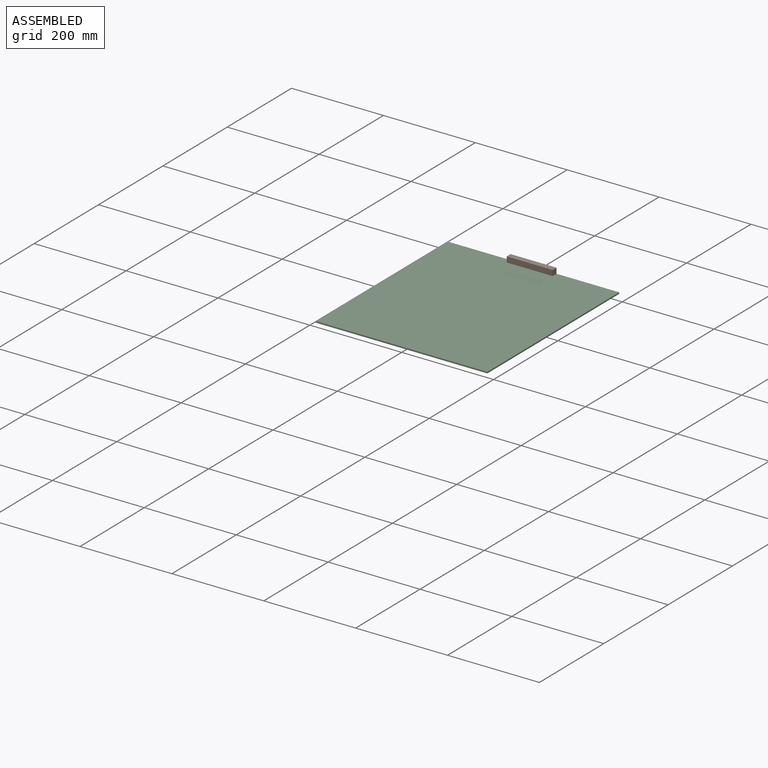
[diagram: assembled view]
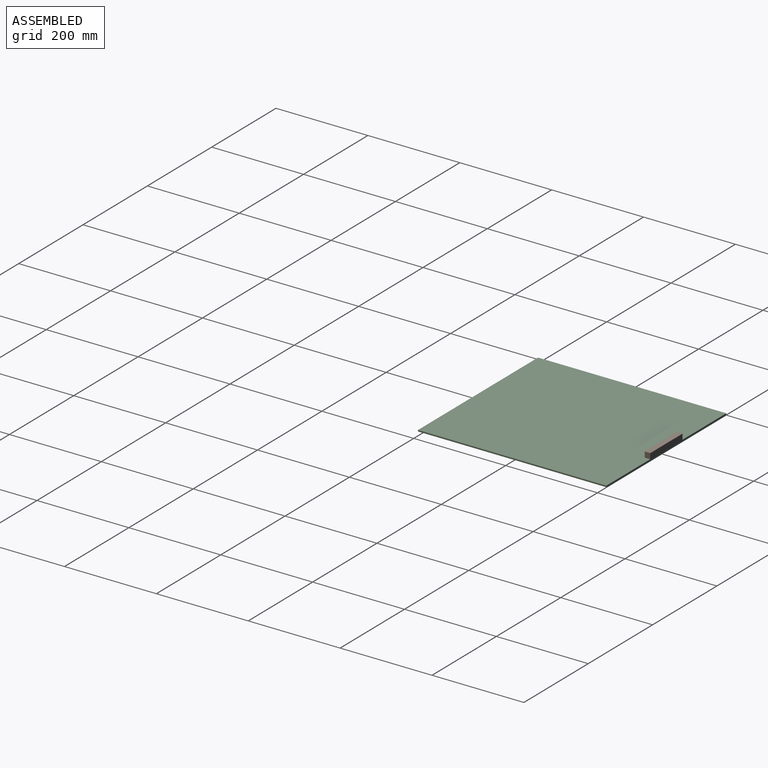
[diagram: assembled view, second angle]
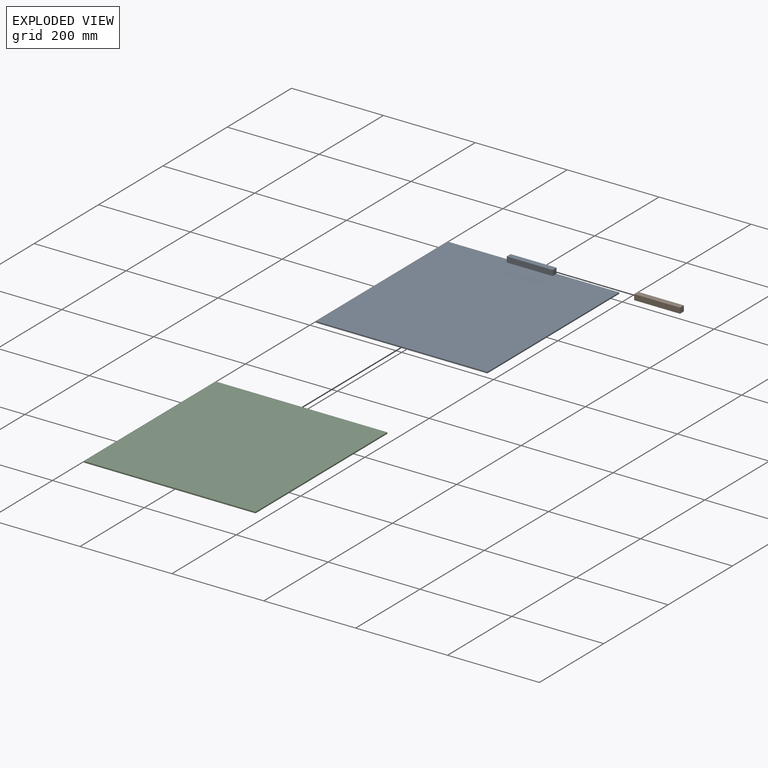
[diagram: exploded view]
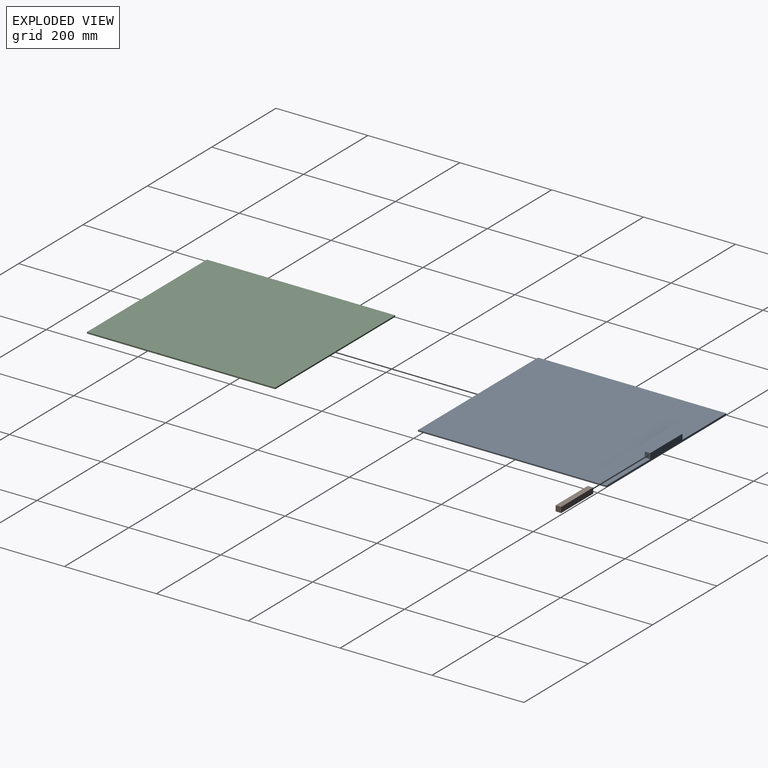
[diagram: exploded view, second angle]
FCSTD DOCUMENT  (FreeCAD 0.19R)
Label: testna_plosca
License: All rights reserved
LicenseURL: http://en.wikipedia.org/wiki/All_rights_reserved
objects: TechDraw::DrawViewDimension×6, PartDesign::CoordinateSystem×5, TechDraw::DrawProjGroupItem×4, App::DocumentObjectGroup×3, App::Part×3, Sketcher::SketchObject×2, PartDesign::Pad×2, PartDesign::Body×2, App::Link×2, TechDraw::DrawProjGroup×2, App::FeaturePython×1, TechDraw::DrawSVGTemplate×1, TechDraw::DrawViewPart×1, TechDraw::DrawRichAnno×1, TechDraw::DrawPage×1
note: 13 computed .brp shape members not serialized (recipe doc carries the construction recipe); baked Part::Feature solids carry a one-line shape summary decoded from their .brp

FEATURE [PartDesign::CoordinateSystem] LCS_Origin
  AttacherType = Attacher::AttachEngine3D
  MapMode = 2
  Support = -> [X_Axis]
FEATURE [App::FeaturePython] Variables  # WARN: FeaturePython — macro-defined, semantics opaque (R4)
  Type = App::PropertyContainer
  depth = 410
  width = 373
FEATURE [App::DocumentObjectGroup] Constraints
FEATURE [App::DocumentObjectGroup] Configurations
FEATURE [PartDesign::CoordinateSystem] LCS_0
  AttacherType = Attacher::AttachEngine3D
  MapMode = 2
  Support = -> [X_Axis001]
FEATURE [PartDesign::CoordinateSystem] LCS_0001
  AttacherType = Attacher::AttachEngine3D
  MapMode = 2
  Support = -> [X_Axis002]
FEATURE [Sketcher::SketchObject] Sketch
  FullyConstrained = true
  MapMode = 5
  Support = -> [XY_Plane002]
  expr: Constraints[9] = Variables.width
  expr: Constraints[10] = Variables.depth
  sketch-geometry (4):
    g0: LineSegment StartX=-186.5 StartY=0 StartZ=0 EndX=186.5 EndY=0 EndZ=0
    g1: LineSegment StartX=186.5 StartY=0 StartZ=0 EndX=186.5 EndY=410 EndZ=0
    g2: LineSegment StartX=186.5 StartY=410 StartZ=0 EndX=-186.5 EndY=410 EndZ=0
    g3: LineSegment StartX=-186.5 StartY=410 StartZ=0 EndX=-186.5 EndY=0 EndZ=0
  constraints (11):
    c: Coincident(g0,g1)
    c: Coincident(g1,g2)
    c: Coincident(g2,g3)
    c: Coincident(g3,g0)
    c: Horizontal(g0)
    c: Horizontal(g2)
    c: Vertical(g1)
    c: Vertical(g3)
    c: Symmetric(g0,g0,g-1)
    c: DistanceX(g0,g0) = 373
    c: DistanceY(g1,g1) = 410
FEATURE [PartDesign::Pad] Pad
  Direction = (1,1,1)
  Length = 3
  Length2 = 100
  Profile = -> Sketch
  Type = 0
FEATURE [PartDesign::Body] Body
  Group = -> [LCS_0001,Sketch,Pad]
  Origin = -> Origin002
  Tip = -> Pad
FEATURE [App::Part] plate
  Group = -> [LCS_0,Body]
  Origin = -> Origin001
FEATURE [PartDesign::CoordinateSystem] LCS_0002
  AttacherType = Attacher::AttachEngine3D
  MapMode = 2
  Support = -> [X_Axis003]
FEATURE [PartDesign::CoordinateSystem] LCS_0003
  AttacherType = Attacher::AttachEngine3D
  MapMode = 2
  Support = -> [X_Axis004]
FEATURE [Sketcher::SketchObject] Sketch001
  FullyConstrained = true
  MapMode = 5
  Placement = pos=(0,0,0) rot=(0.57735,0.57735,0.57735;2.0944rad)
  Support = -> [YZ_Plane004]
  expr: Constraints[8] = Variables.depth
  sketch-geometry (4):
    g0: LineSegment StartX=398 StartY=15 StartZ=0 EndX=410 EndY=15 EndZ=0
    g1: LineSegment StartX=410 StartY=15 StartZ=0 EndX=410 EndY=3 EndZ=0
    g2: LineSegment StartX=410 StartY=3 StartZ=0 EndX=398 EndY=3 EndZ=0
    g3: LineSegment StartX=398 StartY=3 StartZ=0 EndX=398 EndY=15 EndZ=0
  constraints (12):
    c: Coincident(g0,g1)
    c: Coincident(g1,g2)
    c: Coincident(g2,g3)
    c: Coincident(g3,g0)
    c: Horizontal(g0)
    c: Horizontal(g2)
    c: Vertical(g1)
    c: Vertical(g3)
    c: DistanceX(g-1,g1) = 410
    c: DistanceY(g-1,g1) = 3
    c: DistanceY(g1,g1) = 12
    c: DistanceX(g0,g0) = 12
FEATURE [PartDesign::Pad] Pad001
  Direction = (1,1,1)
  Length = 100
  Length2 = 100
  Midplane = true
  Placement = pos=(0,0,0) rot=(0.57735,0.57735,0.57735;2.0944rad)
  Profile = -> Sketch001
  Type = 0
FEATURE [PartDesign::Body] Body_2
  Group = -> [LCS_0003,Sketch001,Pad001]
  Origin = -> Origin004
  Tip = -> Pad001
FEATURE [App::Part] handle
  Group = -> [LCS_0002,Body_2]
  Origin = -> Origin003
FEATURE [App::DocumentObjectGroup] Parts
  Group = -> [plate,handle]
FEATURE [App::Link] plate001
  AssemblyType = Part::Link
  AttachedBy = #LCS_0
  AttachedTo = Parent Assembly#LCS_Origin
  LinkedObject = -> plate
  SolverId = Asm4EE
  expr: Placement = LCS_Origin.Placement * AttachmentOffset * LCS_0.Placement ^ -1
FEATURE [App::Link] handle001
  AssemblyType = Part::Link
  AttachedBy = #LCS_0002
  AttachedTo = Parent Assembly#LCS_Origin
  LinkedObject = -> handle
  SolverId = Asm4EE
  expr: Placement = LCS_Origin.Placement * AttachmentOffset * LCS_0002.Placement ^ -1
FEATURE [App::Part] Assembly
  AssemblyType = Part::Link
  Group = -> [LCS_Origin,Variables,Constraints,Configurations,plate001,handle001]
  Origin = -> Origin
  Type = Assembly
FEATURE [TechDraw::DrawSVGTemplate] Template
  EditableTexts = AVTOR=Brane Borštnik; AVTOR_2=Risal: Janez Paternoster; DATUM=6.5.2022; MERILO=1:5; NAZIV=Testna plošča; NAZIV_2=Dadant-Blatt panj; STRAN=Stran 1/1; VIR=https://github.com/<owner>/Dadant-Blatt
  Height = 297
  Orientation = 0
  Width = 210
FEATURE [TechDraw::DrawViewPart] View
  CoarseView = false
  Direction = (0.577,-0.577,0.577)
  Focus = 100
  HardHidden = false
  IsoCount = 0
  IsoHidden = false
  IsoVisible = false
  LockPosition = false
  Perspective = false
  Rotation = 0
  Scale = 0.2
  ScaleType = 0
  SeamHidden = false
  SeamVisible = true
  SmoothHidden = false
  SmoothVisible = true
  Source = -> [Assembly]
  X = 89.9831
  XDirection = (0.707,0.707,0)
  Y = 240.27
FEATURE [TechDraw::DrawProjGroupItem] ProjItem  label="Front"
  CoarseView = false
  Direction = (0,0,1)
  Focus = 100
  HardHidden = false
  IsoCount = 0
  IsoHidden = false
  IsoVisible = false
  LockPosition = true
  Perspective = false
  Rotation = 0
  RotationVector = (0,1,0)
  Scale = 0.2
  ScaleType = 2
  SeamHidden = false
  SeamVisible = true
  SmoothHidden = false
  SmoothVisible = true
  Source = -> [plate]
  Type = 0
  X = 0
  XDirection = (0,1,0)
  Y = 0
FEATURE [TechDraw::DrawProjGroupItem] ProjItem001  label="Left"
  CoarseView = false
  Direction = (0,-1,1e-16)
  Focus = 100
  HardHidden = false
  IsoCount = 0
  IsoHidden = false
  IsoVisible = false
  LockPosition = false
  Perspective = false
  Rotation = 0
  RotationVector = (1,0,0)
  Scale = 0.2
  ScaleType = 2
  SeamHidden = false
  SeamVisible = true
  SmoothHidden = false
  SmoothVisible = true
  Source = -> [plate]
  Type = 1
  X = 56.3
  XDirection = (0,1e-16,1)
  Y = 0
FEATURE [TechDraw::DrawProjGroup] ProjGroup
  Anchor = -> ProjItem
  AutoDistribute = true
  LockPosition = false
  ProjectionType = 0
  Rotation = 0
  Scale = 0.2
  ScaleType = 0
  Source = -> [plate]
  Views = -> [ProjItem,ProjItem001]
  X = 87.0632
  Y = 149.751
  spacingX = 15
  spacingY = 15
FEATURE [TechDraw::DrawProjGroupItem] ProjItem002  label="Front001"
  CoarseView = false
  Direction = (0,-1,0)
  Focus = 100
  HardHidden = false
  IsoCount = 0
  IsoHidden = false
  IsoVisible = false
  LockPosition = true
  Perspective = false
  Rotation = 0
  RotationVector = (1,0,0)
  Scale = 0.2
  ScaleType = 2
  SeamHidden = false
  SeamVisible = true
  SmoothHidden = false
  SmoothVisible = true
  Source = -> [handle]
  Type = 0
  X = 0
  XDirection = (1,0,0)
  Y = 0
FEATURE [TechDraw::DrawProjGroupItem] ProjItem003  label="Left001"
  CoarseView = false
  Direction = (-1,-1e-16,0)
  Focus = 100
  HardHidden = false
  IsoCount = 0
  IsoHidden = false
  IsoVisible = false
  LockPosition = false
  Perspective = false
  Rotation = 0
  RotationVector = (1,0,0)
  Scale = 0.2
  ScaleType = 2
  SeamHidden = false
  SeamVisible = true
  SmoothHidden = false
  SmoothVisible = true
  Source = -> [handle]
  Type = 1
  X = 26.2
  XDirection = (1e-16,-1,0)
  Y = 0
FEATURE [TechDraw::DrawProjGroup] ProjGroup001
  Anchor = -> ProjItem002
  AutoDistribute = true
  LockPosition = false
  ProjectionType = 0
  Rotation = 0
  Scale = 0.2
  ScaleType = 0
  Source = -> [handle]
  Views = -> [ProjItem002,ProjItem003]
  X = 65.7893
  Y = 75.0843
  spacingX = 15
  spacingY = 15
FEATURE [TechDraw::DrawViewDimension] Dimension
  Arbitrary = false
  ArbitraryTolerances = false
  EqualTolerance = true
  FormatSpec = %.6g
  FormatSpecOverTolerance = %+.6g
  FormatSpecUnderTolerance = %+.6g
  Inverted = false
  LockPosition = false
  MeasureType = 1
  OverTolerance = 0
  References2D = -> [ProjItem]
  Rotation = 0
  Scale = 0.2
  ScaleType = 0
  TheoreticalExact = false
  Type = 1
  UnderTolerance = 0
  X = -2.89677
  Y = 40.0941
FEATURE [TechDraw::DrawViewDimension] Dimension001
  Arbitrary = false
  ArbitraryTolerances = false
  EqualTolerance = true
  FormatSpec = %.6g
  FormatSpecOverTolerance = %+.6g
  FormatSpecUnderTolerance = %+.6g
  Inverted = false
  LockPosition = false
  MeasureType = 1
  OverTolerance = 0
  References2D = -> [ProjItem]
  Rotation = 0
  Scale = 0.2
  ScaleType = 0
  TheoreticalExact = false
  Type = 2
  UnderTolerance = 0
  X = -55.2425
  Y = 0
FEATURE [TechDraw::DrawViewDimension] Dimension002
  Arbitrary = false
  ArbitraryTolerances = false
  EqualTolerance = true
  FormatSpec = %.6g
  FormatSpecOverTolerance = %+.6g
  FormatSpecUnderTolerance = %+.6g
  Inverted = false
  LockPosition = false
  MeasureType = 1
  OverTolerance = 0
  References2D = -> [ProjItem001]
  Rotation = 0
  Scale = 0.2
  ScaleType = 0
  TheoreticalExact = false
  Type = 1
  UnderTolerance = 0
  X = 12.3113
  Y = 39.3699
FEATURE [TechDraw::DrawRichAnno] RichTextAnnotation
  AnnoParent = -> ProjItem
  AnnoText = <!DOCTYPE HTML PUBLIC "-//W3C//DTD HTML 4.0//EN" "http://www.w3.org/TR/REC-html40/strict.dtd">\n<html><head><meta name="qrichtext" content="1" /><style type="text/css">\np, li { white-space: pre-wrap; }\n</style></head><body style=" font-family:'Ubuntu'; font-size:11pt; font-weight:400; font-style:normal;">\n<p style=" margin-top:0px; margin-bottom:0px; margin-left:0px; margin-right:0px; -qt-block-indent:0; text-indent:0px;"><span style=" font-size:10pt;">Forex plošča</span></p></body></html>
  LockPosition = false
  MaxWidth = -1
  Rotation = 0
  Scale = 0.2
  ScaleType = 0
  ShowFrame = false
  X = 0
  Y = 0
FEATURE [TechDraw::DrawViewDimension] Dimension003
  Arbitrary = false
  ArbitraryTolerances = false
  EqualTolerance = true
  FormatSpec = %.6g
  FormatSpecOverTolerance = %+.6g
  FormatSpecUnderTolerance = %+.6g
  Inverted = false
  LockPosition = false
  MeasureType = 1
  OverTolerance = 0
  References2D = -> [ProjItem002]
  Rotation = 0
  Scale = 0.2
  ScaleType = 0
  TheoreticalExact = false
  Type = 1
  UnderTolerance = 0
  X = 0
  Y = 21.236
FEATURE [TechDraw::DrawViewDimension] Dimension004
  Arbitrary = false
  ArbitraryTolerances = false
  EqualTolerance = true
  FormatSpec = %.6g
  FormatSpecOverTolerance = %+.6g
  FormatSpecUnderTolerance = %+.6g
  Inverted = false
  LockPosition = false
  MeasureType = 1
  OverTolerance = 0
  References2D = -> [ProjItem003]
  Rotation = 0
  Scale = 0.2
  ScaleType = 0
  TheoreticalExact = false
  Type = 1
  UnderTolerance = 0
  X = 6.4273
  Y = 23.2365
FEATURE [TechDraw::DrawViewDimension] Dimension005
  Arbitrary = false
  ArbitraryTolerances = false
  EqualTolerance = true
  FormatSpec = %.6g
  FormatSpecOverTolerance = %+.6g
  FormatSpecUnderTolerance = %+.6g
  Inverted = false
  LockPosition = false
  MeasureType = 1
  OverTolerance = 0
  References2D = -> [ProjItem003]
  Rotation = 0
  Scale = 0.2
  ScaleType = 0
  TheoreticalExact = false
  Type = 2
  UnderTolerance = 0
  X = 22.1653
  Y = 17.5986
FEATURE [TechDraw::DrawPage] Page
  KeepUpdated = true
  NextBalloonIndex = 1
  ProjectionType = 0
  Scale = 0.2
  Template = -> Template
  Views = -> [View,ProjGroup,ProjGroup001,Dimension,Dimension001,Dimension002,RichTextAnnotation,Dimension003,Dimension004,Dimension005]
